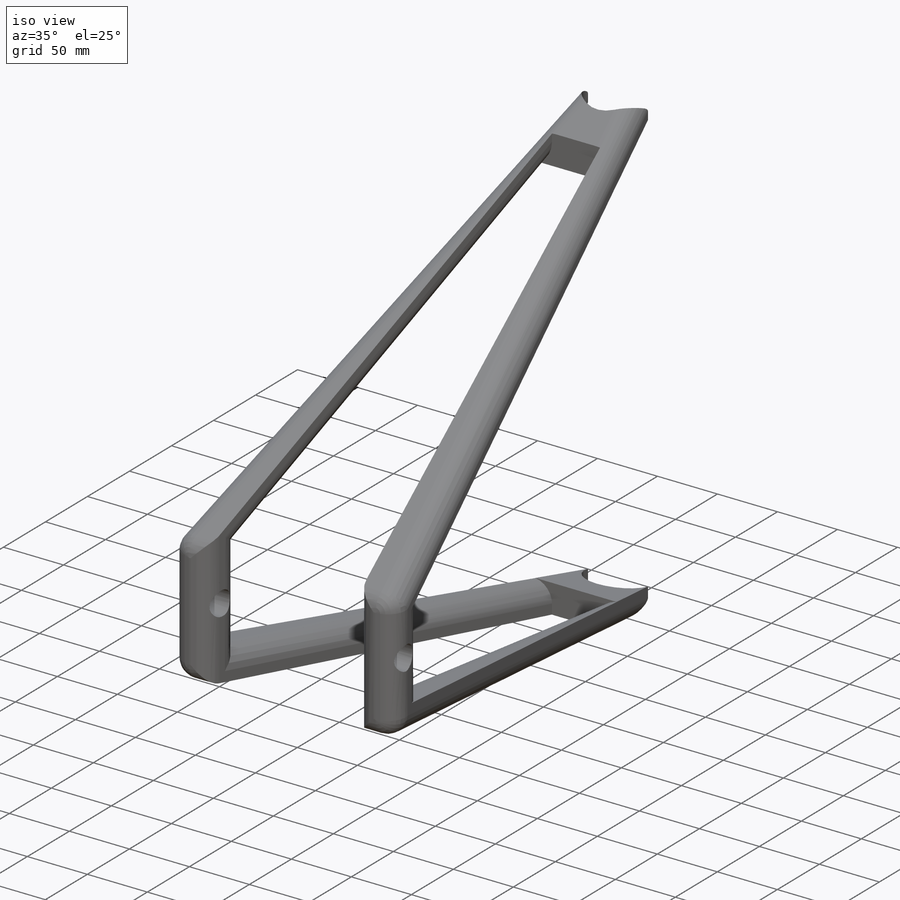
[diagram: iso view]
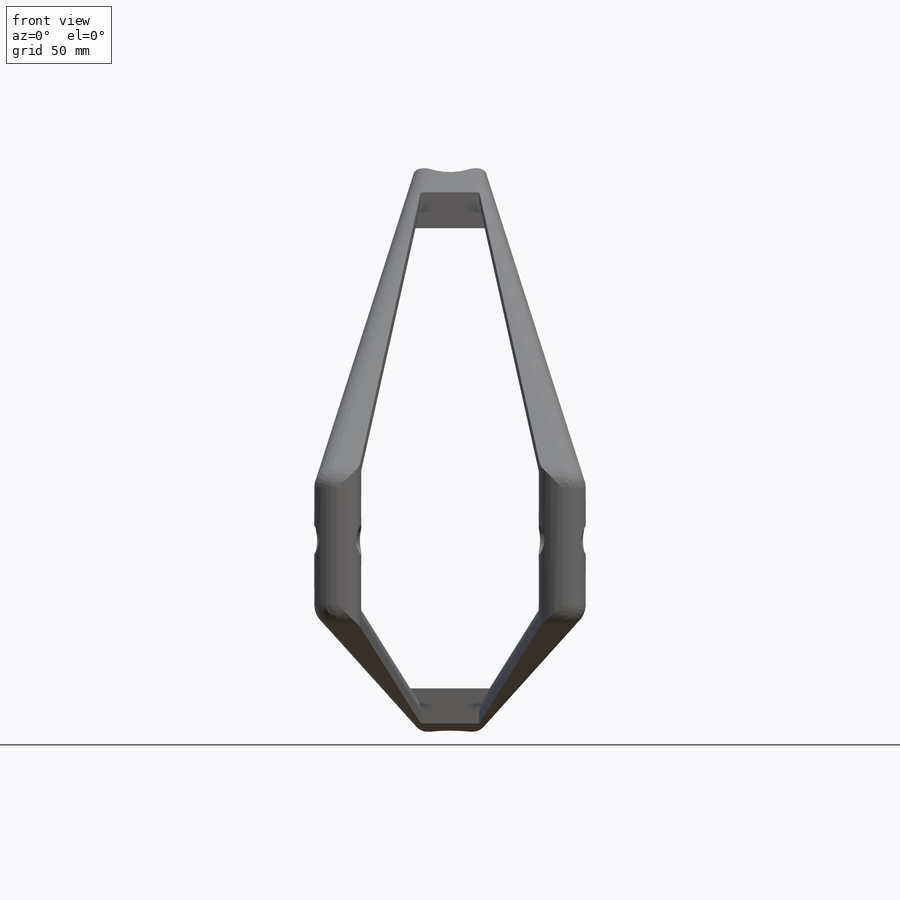
[diagram: front view]
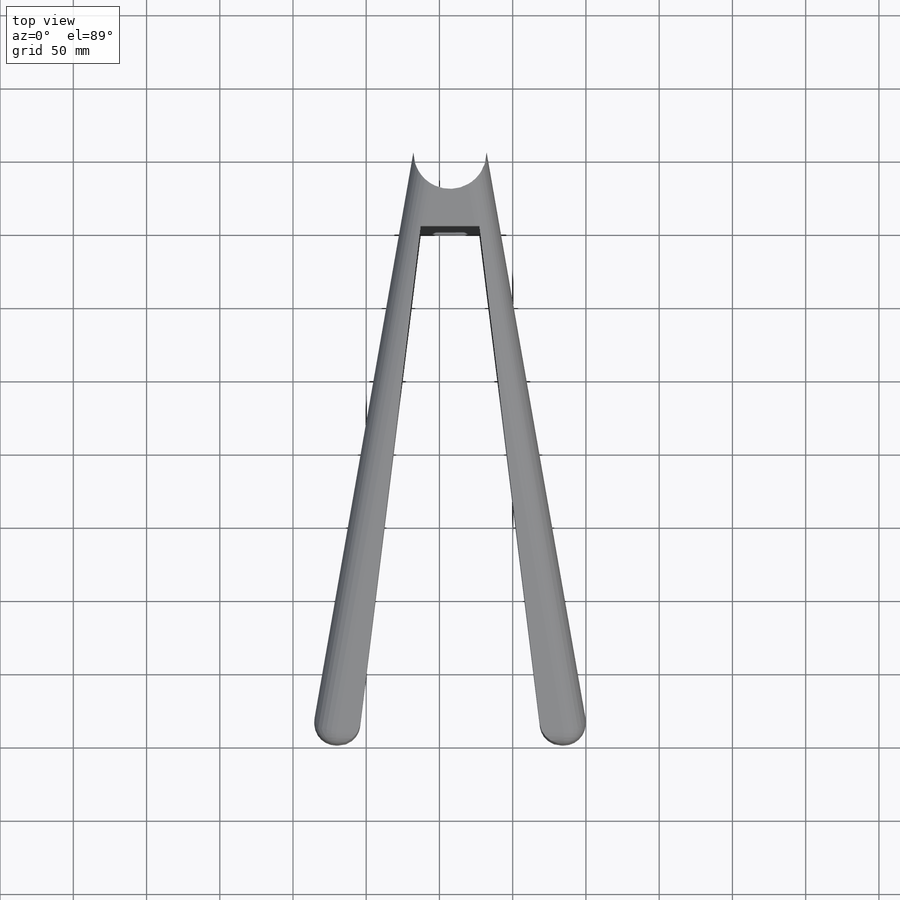
[diagram: top view]
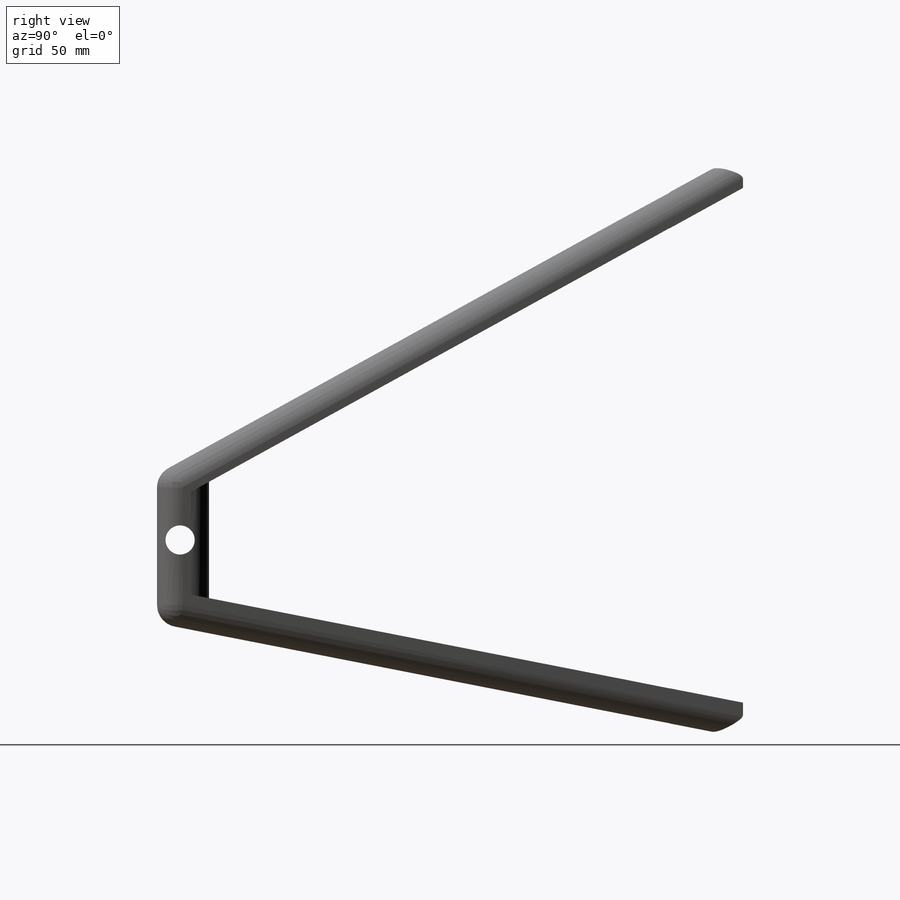
[diagram: right view]
SOLIDWORKS PART (.sldprt)
format: sldprt  version: not decoded by parser v0  size: 285,696 bytes
history: native  units: mm
features: sketch x3, cut_extrude x2, material x1, extrude x1, fillet x1 (+14 scaffold rows collapsed)
feature tree (22):
  scaffold x14  (default folders/planes/origin — collapsed)
  material  "1060 Alloy"
  sketch  "Sketch1"  dims[D1=400.0mm]
  extrude  "Extrude1"  Depth=400mm
  sketch  "Sketch2"  dims[c1.D1=24.0mm c1.D2=24.0mm c2.D1=24.0mm]
  cut_extrude  "Extrude2"  Depth=400mm
  sketch  "Sketch6"  dims[D1=~14.278456mm D2=20.0mm]
  cut_extrude  "Extrude3"  Depth=400mm
  fillet  "Fillet2"  Radius=15mm
decode coverage: 7 of 7 modeling features carry decoded parameters
note: ~ marks probable driven/reference dimensions
note: suppression state not decoded; provenance and decode notes live in map.json
